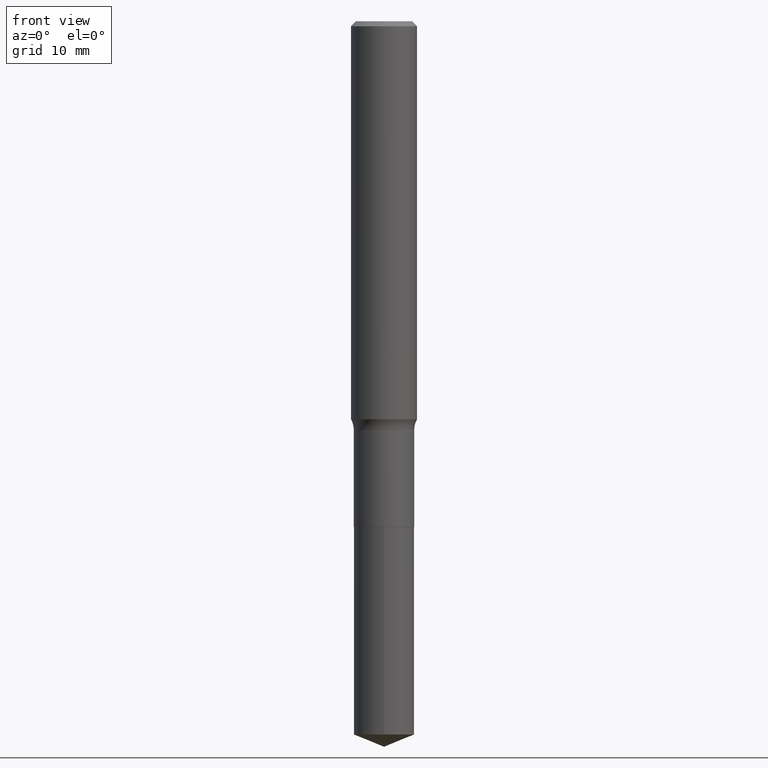
[diagram: clean part render]
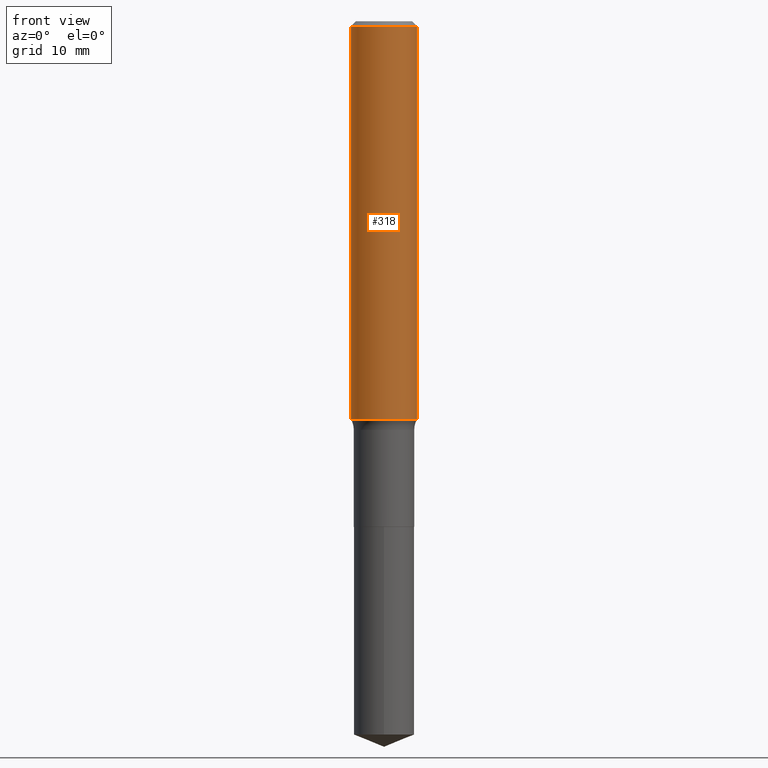
[diagram: same view with one face highlighted and labeled with its STEP entity id]
A machine part, front view. The second image highlights one B-rep face of the part: STEP entity #318.
In plain terms, the highlighted cylindrical surface (edge-blend (fillet) strip) has radius 2.9997 mm, axis along (-0, 0, 1).
Its self-contained STEP definition (entity closure, byte-faithful):
#2 = CARTESIAN_POINT ( 'NONE',  ( 0.000000000000000000, 0.000000000000000000, 0.000000000000000000 ) ) ;
#22 = VECTOR ( 'NONE', #100, 39.37007874015748143 ) ;
#57 = EDGE_CURVE ( 'NONE', #129, #440, #303, .T. ) ;
#70 = VERTEX_POINT ( 'NONE', #304 ) ;
#75 = CIRCLE ( 'NONE', #151, 0.1180999999999999966 ) ;
#76 = ORIENTED_EDGE ( 'NONE', *, *, #414, .T. ) ;
#100 = DIRECTION ( 'NONE',  ( -2.445468806185136877E-29, 3.491481338843145188E-15, 1.000000000000000000 ) ) ;
#105 = DIRECTION ( 'NONE',  ( -2.445468806185136597E-29, 3.491481338843145583E-15, 1.000000000000000000 ) ) ;
#118 = DIRECTION ( 'NONE',  ( 1.000000000000000000, -6.982962677686266711E-15, 4.876176775795936353E-29 ) ) ;
#119 = DIRECTION ( 'NONE',  ( 1.000000000000000000, -6.982962677686266711E-15, 0.000000000000000000 ) ) ;
#129 = VERTEX_POINT ( 'NONE', #466 ) ;
#134 = CARTESIAN_POINT ( 'NONE',  ( -0.1181000000000000799, 8.391509709326788873E-16, -5.809262341591047988E-30 ) ) ;
#139 = FACE_OUTER_BOUND ( 'NONE', #289, .T. ) ;
#143 = DIRECTION ( 'NONE',  ( 1.000000000000000000, -6.982962677686263555E-15, 0.000000000000000000 ) ) ;
#151 = AXIS2_PLACEMENT_3D ( 'NONE', #458, #312, #119 ) ;
#152 = VECTOR ( 'NONE', #459, 39.37007874015748143 ) ;
#168 = ORIENTED_EDGE ( 'NONE', *, *, #233, .F. ) ;
#197 = EDGE_CURVE ( 'NONE', #70, #370, #75, .T. ) ;
#213 = DIRECTION ( 'NONE',  ( -2.445468806185136597E-29, 3.491481338843145583E-15, 1.000000000000000000 ) ) ;
#233 = EDGE_CURVE ( 'NONE', #129, #70, #314, .T. ) ;
#264 = LINE ( 'NONE', #342, #152 ) ;
#280 = ORIENTED_EDGE ( 'NONE', *, *, #57, .T. ) ;
#289 = EDGE_LOOP ( 'NONE', ( #168, #280, #76, #474 ) ) ;
#303 = CIRCLE ( 'NONE', #401, 0.1181000000000001632 ) ;
#304 = CARTESIAN_POINT ( 'NONE',  ( -0.1180999999999999966, -1.680429813214881537E-15, -0.01771500000000010913 ) ) ;
#312 = DIRECTION ( 'NONE',  ( -2.445468806185136597E-29, 3.491481338843145583E-15, 1.000000000000000000 ) ) ;
#314 = LINE ( 'NONE', #134, #22 ) ;
#318 = ADVANCED_FACE ( 'NONE', ( #139 ), #491, .T. ) ;
#329 = CARTESIAN_POINT ( 'NONE',  ( 3.486158196102022756E-29, -4.977309976377515636E-15, -1.425558235412674124 ) ) ;
#342 = CARTESIAN_POINT ( 'NONE',  ( 0.1181000000000000799, -8.246878922347486570E-16, 5.758764772215004644E-30 ) ) ;
#370 = VERTEX_POINT ( 'NONE', #484 ) ;
#399 = AXIS2_PLACEMENT_3D ( 'NONE', #2, #213, #118 ) ;
#401 = AXIS2_PLACEMENT_3D ( 'NONE', #329, #105, #143 ) ;
#414 = EDGE_CURVE ( 'NONE', #440, #370, #264, .T. ) ;
#440 = VERTEX_POINT ( 'NONE', #489 ) ;
#458 = CARTESIAN_POINT ( 'NONE',  ( 4.332147990156996744E-31, -6.185159191760670395E-17, -0.01771500000000010913 ) ) ;
#459 = DIRECTION ( 'NONE',  ( -2.445468806185136877E-29, 3.491481338843145188E-15, 1.000000000000000000 ) ) ;
#466 = CARTESIAN_POINT ( 'NONE',  ( -0.1181000000000001909, -4.138159005444835862E-15, -1.425558235412674124 ) ) ;
#474 = ORIENTED_EDGE ( 'NONE', *, *, #197, .F. ) ;
#484 = CARTESIAN_POINT ( 'NONE',  ( 0.1180999999999999966, -8.865394841523547570E-16, -0.01771500000000010913 ) ) ;
#489 = CARTESIAN_POINT ( 'NONE',  ( 0.1181000000000001909, -5.801997868612264688E-15, -1.425558235412674124 ) ) ;
#491 = CYLINDRICAL_SURFACE ( 'NONE', #399, 0.1181000000000000799 ) ;